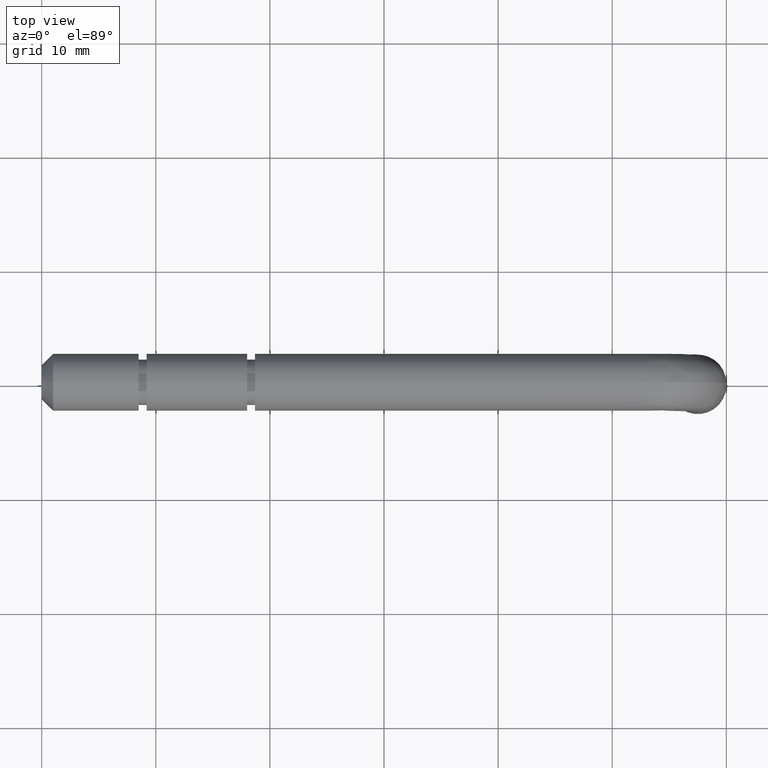
[diagram: clean part render]
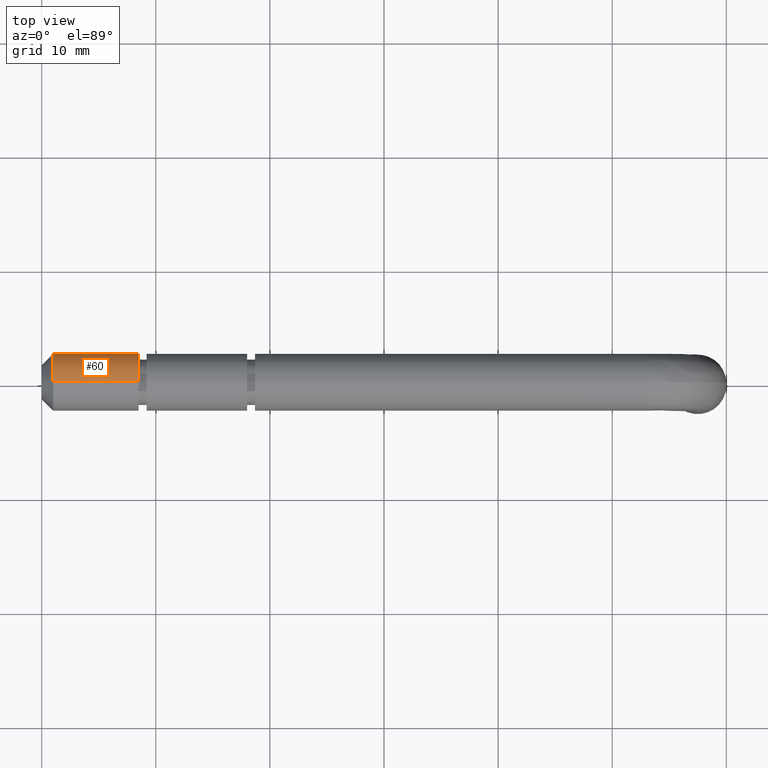
[diagram: same view with one face highlighted and labeled with its STEP entity id]
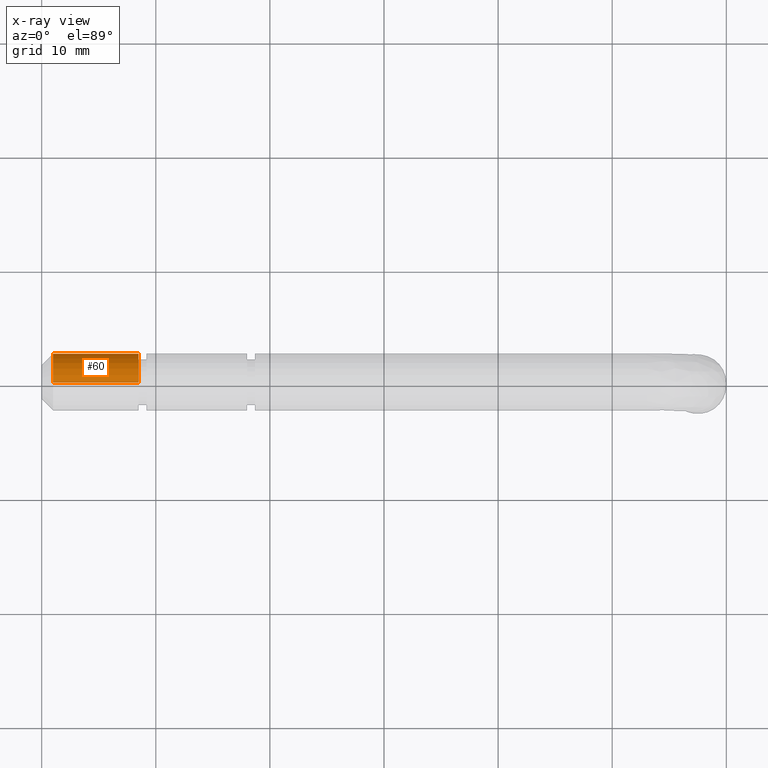
[diagram: x-ray of the same camera — body ghosted, the highlighted face saturated]
A machine part, top view. The second image highlights one B-rep face of the part: STEP entity #60.
The next image is the same camera in x-ray: the body ghosted, the highlighted face saturated — about 0% of this face is hidden behind the body in this view.
In plain terms, the highlighted cylindrical surface (edge-blend (fillet) strip) has radius 2.5 mm, axis along (1, -0, -0).
Its self-contained STEP definition (entity closure, byte-faithful):
#60=ADVANCED_FACE('',(#269),#268,.T.);
#268=CYLINDRICAL_SURFACE('',#475,2.50000000000E+00);
#269=FACE_OUTER_BOUND('',#476,.T.);
#472=CARTESIAN_POINT('',(9.25000000000E+00,-9.77385720359E-16,-6.92211133401E-32));
#473=DIRECTION('',(1.00000000000E+00,-2.51214793389E-16,-1.53824696311E-32));
#474=DIRECTION('',(-1.13595970352E-31,-3.90954288144E-16,-1.00000000000E+00));
#475=AXIS2_PLACEMENT_3D('',#472,#473,#474);
#476=EDGE_LOOP('',(#580,#581,#582,#583));
#580=ORIENTED_EDGE('',*,*,#609,.T.);
#581=ORIENTED_EDGE('',*,*,#636,.F.);
#582=ORIENTED_EDGE('',*,*,#637,.F.);
#583=ORIENTED_EDGE('',*,*,#638,.T.);
#609=EDGE_CURVE('',#727,#726,#734,.T.);
#636=EDGE_CURVE('',#908,#726,#909,.T.);
#637=EDGE_CURVE('',#915,#908,#916,.T.);
#638=EDGE_CURVE('',#915,#727,#922,.T.);
#726=VERTEX_POINT('',#1007);
#727=VERTEX_POINT('',#1008);
#734=CIRCLE('',#1016,2.50000000000E+00);
#908=VERTEX_POINT('',#1109);
#909=(BOUNDED_CURVE() B_SPLINE_CURVE(1,(#1110,#1111),.UNSPECIFIED.,.F.,.F.) B_SPLINE_CURVE_WITH_KNOTS((2,2),(8.33333366442E-02,9.16666667899E-01),.UNSPECIFIED.) CURVE() GEOMETRIC_REPRESENTATION_ITEM() RATIONAL_B_SPLINE_CURVE((1.00000000000E+00,1.00000000000E+00)) REPRESENTATION_ITEM('') );
#915=VERTEX_POINT('',#1112);
#916=CIRCLE('',#1116,2.50000000000E+00);
#922=(BOUNDED_CURVE() B_SPLINE_CURVE(1,(#1117,#1118),.UNSPECIFIED.,.F.,.F.) B_SPLINE_CURVE_WITH_KNOTS((2,2),(8.33333333333E-02,9.16666666667E-01),.UNSPECIFIED.) CURVE() GEOMETRIC_REPRESENTATION_ITEM() RATIONAL_B_SPLINE_CURVE((7.50000000000E-01,7.50000000000E-01)) REPRESENTATION_ITEM('') );
#1007=CARTESIAN_POINT('',(8.50000000000E+00,5.92118946467E-16,-2.50000000000E+00));
#1008=CARTESIAN_POINT('',(8.50000000000E+00,-1.48029736617E-16,2.50000000000E+00));
#1013=CARTESIAN_POINT('',(8.50000000000E+00,1.53080849893E-16,0.00000000000E+00));
#1014=DIRECTION('',(-1.00000000000E+00,0.00000000000E+00,0.00000000000E+00));
#1015=DIRECTION('',(0.00000000000E+00,-2.42904869986E-16,1.00000000000E+00));
#1016=AXIS2_PLACEMENT_3D('',#1013,#1014,#1015);
#1109=CARTESIAN_POINT('',(1.00000000000E+00,9.18464876698E-16,-2.50000000000E+00));
#1110=CARTESIAN_POINT('',(1.00000002980E+00,1.17750597259E-16,-2.50000000000E+00));
#1111=CARTESIAN_POINT('',(8.50000001109E+00,-1.76636034846E-15,-2.50000000000E+00));
#1112=CARTESIAN_POINT('',(1.00000000000E+00,-4.44089209850E-16,2.50000000000E+00));
#1113=CARTESIAN_POINT('',(1.00000000000E+00,1.53080849893E-16,0.00000000000E+00));
#1114=DIRECTION('',(-1.00000000000E+00,0.00000000000E+00,0.00000000000E+00));
#1115=DIRECTION('',(-0.00000000000E+00,1.83692975340E-16,-1.00000000000E+00));
#1116=AXIS2_PLACEMENT_3D('',#1113,#1114,#1115);
#1117=CARTESIAN_POINT('',(1.00000000000E+00,2.03540887848E-15,2.50000000000E+00));
#1118=CARTESIAN_POINT('',(8.50000000000E+00,1.85037170771E-16,2.50000000000E+00));